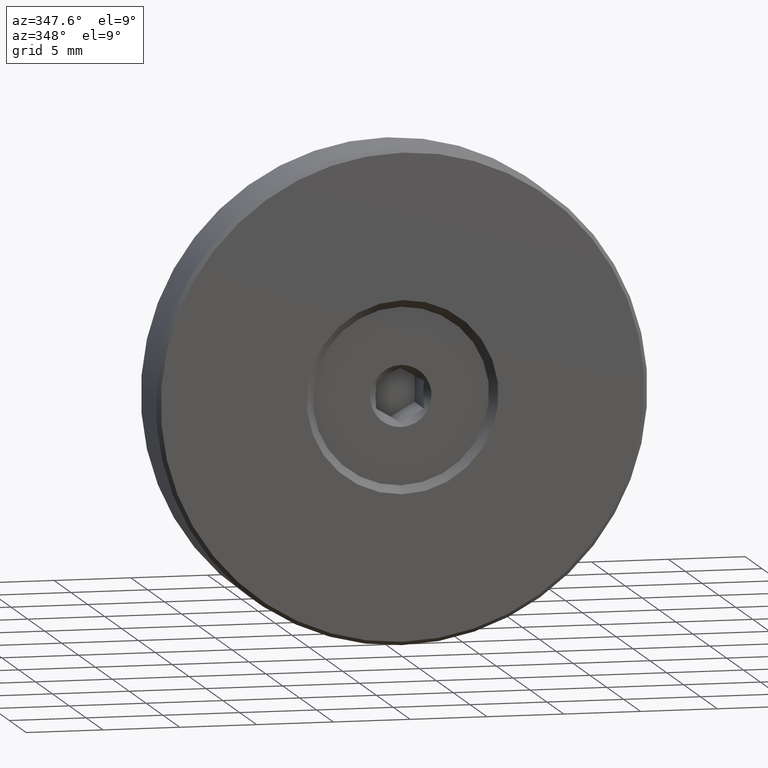
[diagram: clean part render]
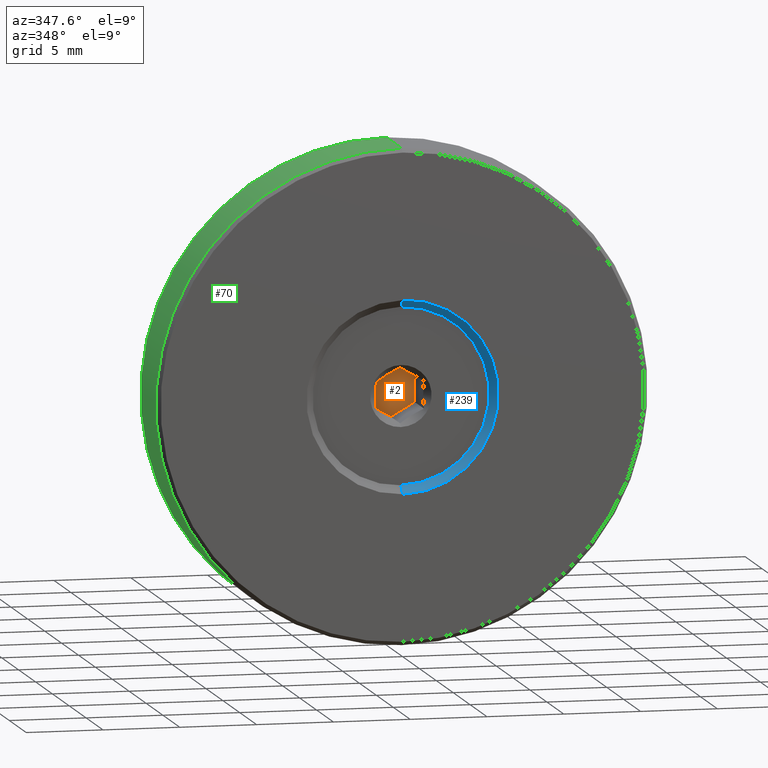
[diagram: same view with three faces highlighted in distinct colors, each labeled with its STEP entity id]
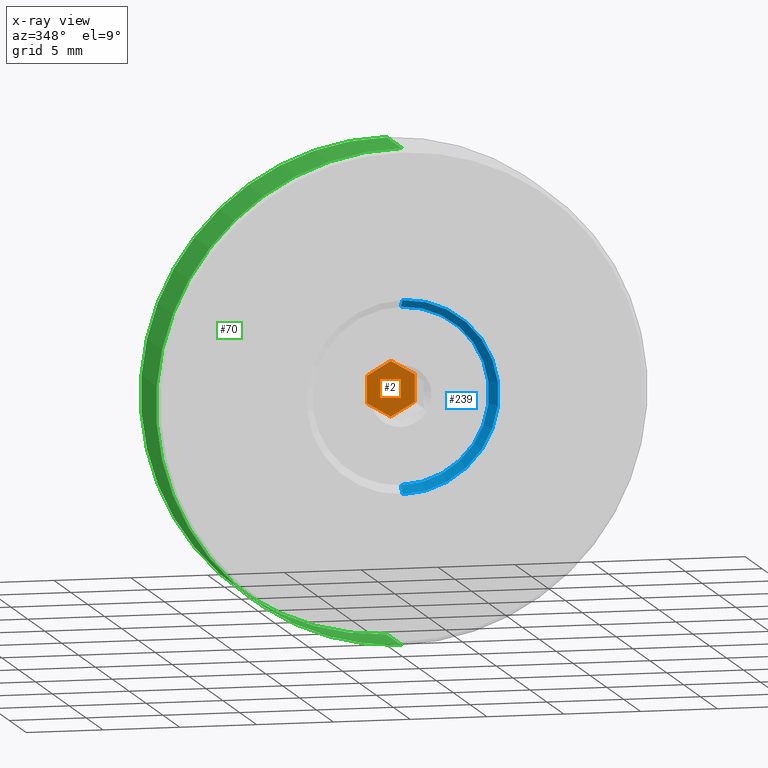
[diagram: x-ray of the same camera — body ghosted, the three highlighted faces saturated]
A machine part, auxiliary view with three faces highlighted in distinct colors.
The next image is the same camera in x-ray (body ghosted, the three faces saturated) — at least one of them is partly hidden behind the body in this view.
Their STEP definitions:

[orange] entity #2 — the highlighted planar face has unit normal (0, -1, 0).
#2 = ADVANCED_FACE ( 'NONE', ( #33 ), #144, .T. ) ;
#10 = VECTOR ( 'NONE', #763, 1000.000000000000000 ) ;
#22 = CARTESIAN_POINT ( 'NONE',  ( -1.550000000000000266, 3.500000000000000000, 0.8948929172439208379 ) ) ;
#33 = FACE_OUTER_BOUND ( 'NONE', #650, .T. ) ;
#55 = AXIS2_PLACEMENT_3D ( 'NONE', #412, #480, #823 ) ;
#86 = ORIENTED_EDGE ( 'NONE', *, *, #171, .T. ) ;
#89 = LINE ( 'NONE', #22, #305 ) ;
#113 = ORIENTED_EDGE ( 'NONE', *, *, #328, .T. ) ;
#119 = VERTEX_POINT ( 'NONE', #159 ) ;
#137 = DIRECTION ( 'NONE',  ( 0.000000000000000000, 0.000000000000000000, -1.000000000000000000 ) ) ;
#143 = CARTESIAN_POINT ( 'NONE',  ( -3.705363497162986983E-18, 3.500000000000000000, 1.789785834487840788 ) ) ;
#144 = PLANE ( 'NONE',  #55 ) ;
#159 = CARTESIAN_POINT ( 'NONE',  ( -5.302822042044525202E-16, 3.500000000000000000, -1.789785834487839900 ) ) ;
#171 = EDGE_CURVE ( 'NONE', #443, #764, #564, .T. ) ;
#175 = VERTEX_POINT ( 'NONE', #574 ) ;
#223 = CARTESIAN_POINT ( 'NONE',  ( 1.549999999999999600, 3.500000000000000000, 0.8948929172439209490 ) ) ;
#238 = ORIENTED_EDGE ( 'NONE', *, *, #660, .T. ) ;
#249 = DIRECTION ( 'NONE',  ( 0.8660254037844384856, 0.000000000000000000, -0.5000000000000002220 ) ) ;
#286 = DIRECTION ( 'NONE',  ( 0.8660254037844387076, 0.000000000000000000, 0.4999999999999997224 ) ) ;
#302 = EDGE_CURVE ( 'NONE', #555, #369, #606, .T. ) ;
#305 = VECTOR ( 'NONE', #137, 1000.000000000000000 ) ;
#328 = EDGE_CURVE ( 'NONE', #119, #443, #682, .T. ) ;
#333 = CARTESIAN_POINT ( 'NONE',  ( 1.549999999999999822, 3.500000000000000000, -0.8948929172439203938 ) ) ;
#351 = ORIENTED_EDGE ( 'NONE', *, *, #598, .T. ) ;
#358 = CARTESIAN_POINT ( 'NONE',  ( -5.302822042044525202E-16, 3.500000000000000000, -1.789785834487839900 ) ) ;
#364 = ORIENTED_EDGE ( 'NONE', *, *, #302, .T. ) ;
#369 = VERTEX_POINT ( 'NONE', #624 ) ;
#404 = DIRECTION ( 'NONE',  ( -0.8660254037844385966, 0.000000000000000000, 0.5000000000000001110 ) ) ;
#412 = CARTESIAN_POINT ( 'NONE',  ( 0.000000000000000000, 3.500000000000000000, 0.000000000000000000 ) ) ;
#443 = VERTEX_POINT ( 'NONE', #333 ) ;
#480 = DIRECTION ( 'NONE',  ( 0.000000000000000000, -1.000000000000000000, 0.000000000000000000 ) ) ;
#487 = LINE ( 'NONE', #223, #726 ) ;
#555 = VERTEX_POINT ( 'NONE', #709 ) ;
#564 = LINE ( 'NONE', #832, #10 ) ;
#573 = LINE ( 'NONE', #841, #589 ) ;
#574 = CARTESIAN_POINT ( 'NONE',  ( -1.550000000000000266, 3.500000000000000000, -0.8948929172439197277 ) ) ;
#589 = VECTOR ( 'NONE', #249, 1000.000000000000114 ) ;
#596 = CARTESIAN_POINT ( 'NONE',  ( 1.549999999999999600, 3.500000000000000000, 0.8948929172439209490 ) ) ;
#598 = EDGE_CURVE ( 'NONE', #175, #119, #573, .T. ) ;
#606 = LINE ( 'NONE', #143, #749 ) ;
#624 = CARTESIAN_POINT ( 'NONE',  ( -1.550000000000000266, 3.500000000000000000, 0.8948929172439208379 ) ) ;
#650 = EDGE_LOOP ( 'NONE', ( #113, #86, #775, #364, #238, #351 ) ) ;
#660 = EDGE_CURVE ( 'NONE', #369, #175, #89, .T. ) ;
#662 = VECTOR ( 'NONE', #286, 1000.000000000000114 ) ;
#682 = LINE ( 'NONE', #358, #662 ) ;
#693 = EDGE_CURVE ( 'NONE', #764, #555, #487, .T. ) ;
#709 = CARTESIAN_POINT ( 'NONE',  ( -3.705363497162986983E-18, 3.500000000000000000, 1.789785834487840788 ) ) ;
#726 = VECTOR ( 'NONE', #404, 1000.000000000000000 ) ;
#749 = VECTOR ( 'NONE', #811, 1000.000000000000000 ) ;
#763 = DIRECTION ( 'NONE',  ( -1.211544031239643760E-16, 0.000000000000000000, 1.000000000000000000 ) ) ;
#764 = VERTEX_POINT ( 'NONE', #596 ) ;
#775 = ORIENTED_EDGE ( 'NONE', *, *, #693, .T. ) ;
#811 = DIRECTION ( 'NONE',  ( -0.8660254037844387076, 0.000000000000000000, -0.4999999999999999445 ) ) ;
#823 = DIRECTION ( 'NONE',  ( 0.000000000000000000, -0.000000000000000000, -1.000000000000000000 ) ) ;
#832 = CARTESIAN_POINT ( 'NONE',  ( 1.549999999999999822, 3.500000000000000000, -0.8948929172439203938 ) ) ;
#841 = CARTESIAN_POINT ( 'NONE',  ( -1.550000000000000266, 3.500000000000000000, -0.8948929172439197277 ) ) ;

[blue] entity #239 — the highlighted conical surface has half-angle 45 deg.
#28 = CARTESIAN_POINT ( 'NONE',  ( 0.000000000000000000, 0.5000000000000000000, 0.000000000000000000 ) ) ;
#40 = DIRECTION ( 'NONE',  ( 0.000000000000000000, 0.000000000000000000, 1.000000000000000000 ) ) ;
#58 = VERTEX_POINT ( 'NONE', #817 ) ;
#61 = EDGE_CURVE ( 'NONE', #58, #378, #323, .T. ) ;
#81 = DIRECTION ( 'NONE',  ( 0.000000000000000000, -1.000000000000000000, 0.000000000000000000 ) ) ;
#135 = CONICAL_SURFACE ( 'NONE', #222, 5.750000000000000000, 0.7853981633974491672 ) ;
#165 = ORIENTED_EDGE ( 'NONE', *, *, #665, .F. ) ;
#172 = DIRECTION ( 'NONE',  ( 0.000000000000000000, 1.000000000000000000, 0.000000000000000000 ) ) ;
#222 = AXIS2_PLACEMENT_3D ( 'NONE', #570, #441, #710 ) ;
#239 = ADVANCED_FACE ( 'NONE', ( #368 ), #135, .F. ) ;
#273 = CARTESIAN_POINT ( 'NONE',  ( 0.000000000000000000, 0.4999999999999978351, -5.750000000000000000 ) ) ;
#285 = CARTESIAN_POINT ( 'NONE',  ( 7.041719095097280880E-16, 0.4999999999999978351, 5.750000000000000000 ) ) ;
#292 = DIRECTION ( 'NONE',  ( 0.000000000000000000, 0.000000000000000000, -1.000000000000000000 ) ) ;
#320 = EDGE_LOOP ( 'NONE', ( #165, #584, #455, #773 ) ) ;
#323 = CIRCLE ( 'NONE', #426, 5.750000000000000000 ) ;
#342 = LINE ( 'NONE', #273, #741 ) ;
#368 = FACE_OUTER_BOUND ( 'NONE', #320, .T. ) ;
#372 = AXIS2_PLACEMENT_3D ( 'NONE', #767, #172, #40 ) ;
#378 = VERTEX_POINT ( 'NONE', #395 ) ;
#395 = CARTESIAN_POINT ( 'NONE',  ( 7.347880794884118750E-16, 0.5000000000000000000, 5.750000000000000000 ) ) ;
#422 = LINE ( 'NONE', #285, #566 ) ;
#426 = AXIS2_PLACEMENT_3D ( 'NONE', #28, #81, #292 ) ;
#441 = DIRECTION ( 'NONE',  ( 0.000000000000000000, -1.000000000000000000, 0.000000000000000000 ) ) ;
#455 = ORIENTED_EDGE ( 'NONE', *, *, #634, .T. ) ;
#471 = DIRECTION ( 'NONE',  ( 0.000000000000000000, -0.7071067811865469066, -0.7071067811865481278 ) ) ;
#546 = DIRECTION ( 'NONE',  ( 8.659560562354940254E-17, -0.7071067811865469066, 0.7071067811865481278 ) ) ;
#563 = EDGE_CURVE ( 'NONE', #642, #847, #672, .T. ) ;
#566 = VECTOR ( 'NONE', #546, 1000.000000000000114 ) ;
#570 = CARTESIAN_POINT ( 'NONE',  ( 0.000000000000000000, 0.4999999999999978351, 0.000000000000000000 ) ) ;
#584 = ORIENTED_EDGE ( 'NONE', *, *, #61, .F. ) ;
#634 = EDGE_CURVE ( 'NONE', #58, #847, #342, .T. ) ;
#642 = VERTEX_POINT ( 'NONE', #736 ) ;
#665 = EDGE_CURVE ( 'NONE', #378, #642, #422, .T. ) ;
#671 = CARTESIAN_POINT ( 'NONE',  ( 0.000000000000000000, 0.000000000000000000, -6.249999999999998224 ) ) ;
#672 = CIRCLE ( 'NONE', #372, 6.249999999999998224 ) ;
#710 = DIRECTION ( 'NONE',  ( 0.000000000000000000, 0.000000000000000000, -1.000000000000000000 ) ) ;
#736 = CARTESIAN_POINT ( 'NONE',  ( 7.654042494670955634E-16, 0.000000000000000000, 6.249999999999998224 ) ) ;
#741 = VECTOR ( 'NONE', #471, 1000.000000000000114 ) ;
#767 = CARTESIAN_POINT ( 'NONE',  ( 0.000000000000000000, 0.000000000000000000, 0.000000000000000000 ) ) ;
#773 = ORIENTED_EDGE ( 'NONE', *, *, #563, .F. ) ;
#817 = CARTESIAN_POINT ( 'NONE',  ( 0.000000000000000000, 0.5000000000000000000, -5.750000000000000000 ) ) ;
#847 = VERTEX_POINT ( 'NONE', #671 ) ;

[green] entity #70 — the highlighted cylindrical surface (partial cylindrical patch) has radius 16 mm, axis along (-0, -1, -0).
#9 = CIRCLE ( 'NONE', #799, 16.00000000000000000 ) ;
#11 = EDGE_CURVE ( 'NONE', #259, #512, #9, .T. ) ;
#19 = CARTESIAN_POINT ( 'NONE',  ( 1.959434878635765131E-15, 4.750000000000000000, 16.00000000000000000 ) ) ;
#70 = ADVANCED_FACE ( 'NONE', ( #744 ), #812, .T. ) ;
#76 = CIRCLE ( 'NONE', #497, 16.00000000000000000 ) ;
#77 = EDGE_CURVE ( 'NONE', #259, #160, #338, .T. ) ;
#84 = CARTESIAN_POINT ( 'NONE',  ( 0.000000000000000000, 0.2499999999999967526, -16.00000000000000000 ) ) ;
#85 = CARTESIAN_POINT ( 'NONE',  ( 0.000000000000000000, 0.2499999999999967526, 0.000000000000000000 ) ) ;
#91 = DIRECTION ( 'NONE',  ( 0.000000000000000000, -1.000000000000000000, 0.000000000000000000 ) ) ;
#122 = EDGE_CURVE ( 'NONE', #299, #160, #76, .T. ) ;
#130 = CARTESIAN_POINT ( 'NONE',  ( 0.000000000000000000, 4.750000000000000000, -16.00000000000000000 ) ) ;
#138 = CARTESIAN_POINT ( 'NONE',  ( 0.000000000000000000, 5.000000000000000000, -16.00000000000000000 ) ) ;
#160 = VERTEX_POINT ( 'NONE', #303 ) ;
#206 = DIRECTION ( 'NONE',  ( -0.000000000000000000, -1.000000000000000000, -0.000000000000000000 ) ) ;
#207 = DIRECTION ( 'NONE',  ( 0.000000000000000000, 0.000000000000000000, -1.000000000000000000 ) ) ;
#254 = ORIENTED_EDGE ( 'NONE', *, *, #402, .T. ) ;
#259 = VERTEX_POINT ( 'NONE', #19 ) ;
#276 = DIRECTION ( 'NONE',  ( 0.000000000000000000, 0.000000000000000000, 1.000000000000000000 ) ) ;
#299 = VERTEX_POINT ( 'NONE', #84 ) ;
#303 = CARTESIAN_POINT ( 'NONE',  ( 1.959434878635765131E-15, 0.2499999999999967526, 16.00000000000000000 ) ) ;
#338 = LINE ( 'NONE', #543, #656 ) ;
#401 = DIRECTION ( 'NONE',  ( -0.000000000000000000, -1.000000000000000000, -0.000000000000000000 ) ) ;
#402 = EDGE_CURVE ( 'NONE', #512, #299, #535, .T. ) ;
#407 = CARTESIAN_POINT ( 'NONE',  ( 0.000000000000000000, 4.750000000000000000, 0.000000000000000000 ) ) ;
#420 = EDGE_LOOP ( 'NONE', ( #572, #425, #254, #810 ) ) ;
#425 = ORIENTED_EDGE ( 'NONE', *, *, #11, .T. ) ;
#457 = AXIS2_PLACEMENT_3D ( 'NONE', #689, #401, #207 ) ;
#473 = DIRECTION ( 'NONE',  ( -0.000000000000000000, -1.000000000000000000, -0.000000000000000000 ) ) ;
#490 = DIRECTION ( 'NONE',  ( 0.000000000000000000, 0.000000000000000000, 1.000000000000000000 ) ) ;
#497 = AXIS2_PLACEMENT_3D ( 'NONE', #85, #613, #490 ) ;
#512 = VERTEX_POINT ( 'NONE', #130 ) ;
#535 = LINE ( 'NONE', #138, #795 ) ;
#543 = CARTESIAN_POINT ( 'NONE',  ( 1.959434878635765131E-15, 5.000000000000000000, 16.00000000000000000 ) ) ;
#572 = ORIENTED_EDGE ( 'NONE', *, *, #77, .F. ) ;
#613 = DIRECTION ( 'NONE',  ( -0.000000000000000000, 1.000000000000000000, -0.000000000000000000 ) ) ;
#656 = VECTOR ( 'NONE', #473, 1000.000000000000000 ) ;
#689 = CARTESIAN_POINT ( 'NONE',  ( 0.000000000000000000, 5.000000000000000000, 0.000000000000000000 ) ) ;
#744 = FACE_OUTER_BOUND ( 'NONE', #420, .T. ) ;
#795 = VECTOR ( 'NONE', #206, 1000.000000000000000 ) ;
#799 = AXIS2_PLACEMENT_3D ( 'NONE', #407, #91, #276 ) ;
#810 = ORIENTED_EDGE ( 'NONE', *, *, #122, .T. ) ;
#812 = CYLINDRICAL_SURFACE ( 'NONE', #457, 16.00000000000000000 ) ;